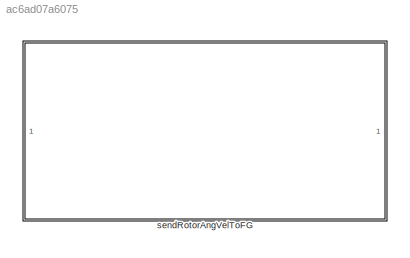
MODEL slx_ac6ad07a6075
KIND library
CONFIG AbsTol = auto
CONFIG EnableMultiTasking = off
CONFIG FixedStep = auto
CONFIG MaxStep = auto
CONFIG MinStep = auto
CONFIG RelTol = 1e-3
CONFIG SampleTimeConstraint = Unconstrained
CONFIG SolverName = VariableStepAuto
CONFIG StartTime = 0.0
CONFIG StopTime = 10.0
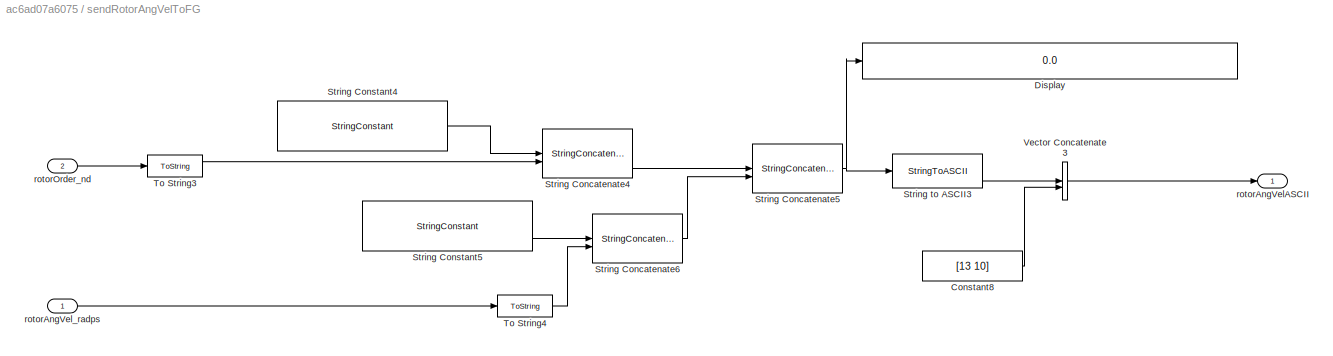
BLOCK [SubSystem] sendRotorAngVelToFG
BLOCK [Constant] sendRotorAngVelToFG/Constant8
  OutDataTypeStr = uint8
  Value = [13 10]
BLOCK [Display] sendRotorAngVelToFG/Display
  Decimation = 1
BLOCK [StringConcatenate] sendRotorAngVelToFG/String Concatenate4
BLOCK [StringConcatenate] sendRotorAngVelToFG/String Concatenate5
BLOCK [StringConcatenate] sendRotorAngVelToFG/String Concatenate6
BLOCK [StringConstant] sendRotorAngVelToFG/String Constant4
  String = "set /engines/engine["
BLOCK [StringConstant] sendRotorAngVelToFG/String Constant5
  String = "]/rpm "
BLOCK [StringToASCII] sendRotorAngVelToFG/String to ASCII3
  OutputVectorSize = 30
BLOCK [ToString] sendRotorAngVelToFG/To String3
BLOCK [ToString] sendRotorAngVelToFG/To String4
BLOCK [Concatenate] sendRotorAngVelToFG/Vector Concatenate3
BLOCK [Outport] sendRotorAngVelToFG/rotorAngVelASCII
BLOCK [Inport] sendRotorAngVelToFG/rotorAngVel_radps
BLOCK [Inport] sendRotorAngVelToFG/rotorOrder_nd
  Port = 2
LINE sendRotorAngVelToFG/Constant8:1 -> sendRotorAngVelToFG/Vector Concatenate3:2
LINE sendRotorAngVelToFG/String Concatenate4:1 -> sendRotorAngVelToFG/String Concatenate5:1
NET sendRotorAngVelToFG/String Concatenate5:1 -> sendRotorAngVelToFG/Display:1, sendRotorAngVelToFG/String to ASCII3:1
LINE sendRotorAngVelToFG/String Concatenate6:1 -> sendRotorAngVelToFG/String Concatenate5:2
LINE sendRotorAngVelToFG/String Constant4:1 -> sendRotorAngVelToFG/String Concatenate4:1
LINE sendRotorAngVelToFG/String Constant5:1 -> sendRotorAngVelToFG/String Concatenate6:1
LINE sendRotorAngVelToFG/String to ASCII3:1 -> sendRotorAngVelToFG/Vector Concatenate3:1
LINE sendRotorAngVelToFG/To String3:1 -> sendRotorAngVelToFG/String Concatenate4:2
LINE sendRotorAngVelToFG/To String4:1 -> sendRotorAngVelToFG/String Concatenate6:2
LINE sendRotorAngVelToFG/Vector Concatenate3:1 -> sendRotorAngVelToFG/rotorAngVelASCII:1
LINE sendRotorAngVelToFG/rotorAngVel_radps:1 -> sendRotorAngVelToFG/To String4:1
LINE sendRotorAngVelToFG/rotorOrder_nd:1 -> sendRotorAngVelToFG/To String3:1
note: NET lines group one-source signal fan-out (src -> all destinations, sorted); 1:1 wires keep LINE
